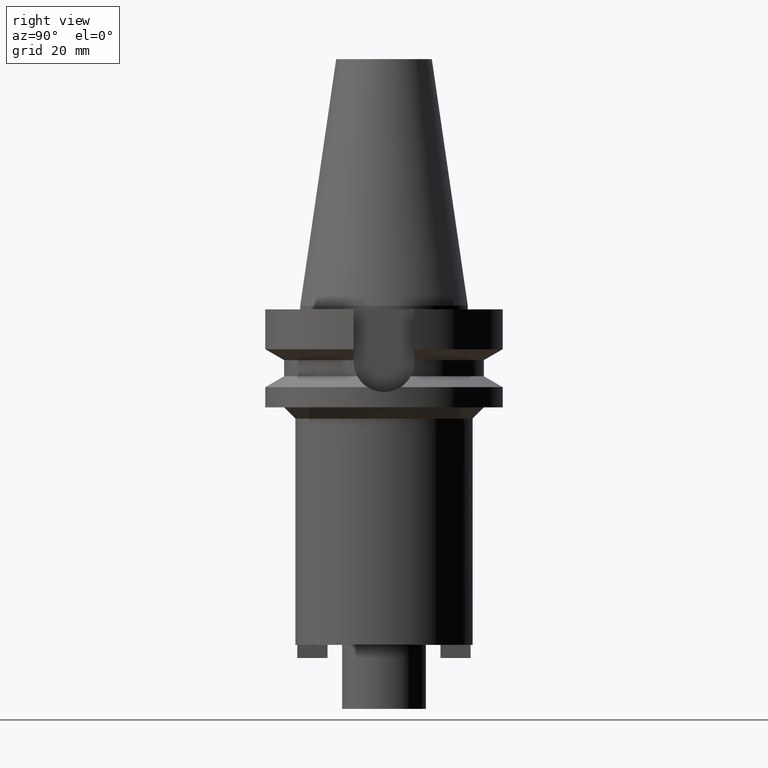
[diagram: clean part render]
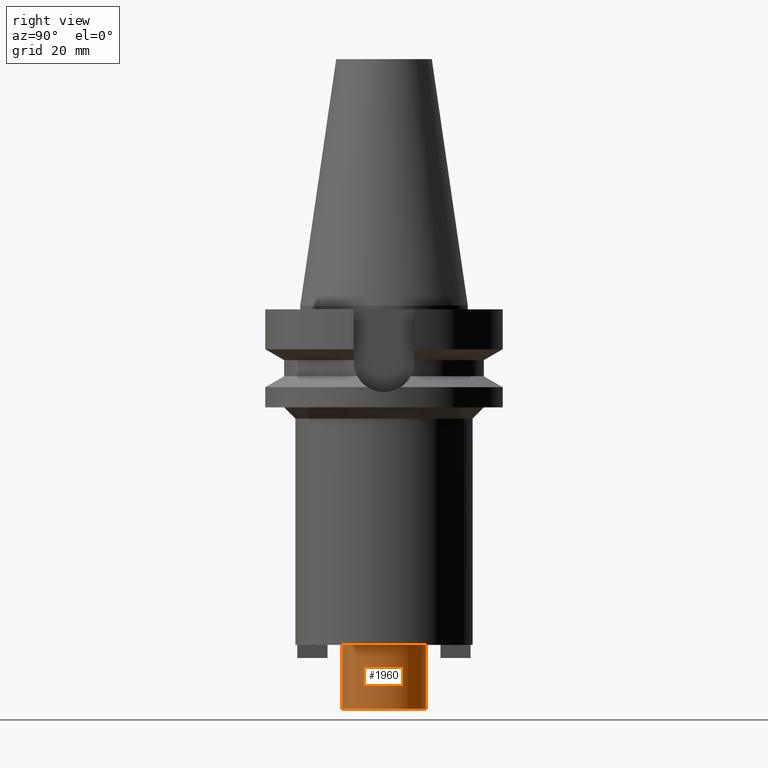
[diagram: same view with one face highlighted and labeled with its STEP entity id]
A machine part, right view. The second image highlights one B-rep face of the part: STEP entity #1960.
In plain terms, the highlighted cylindrical surface (partial cylindrical patch) has radius 11.1125 mm, axis along (0, 0, -1).
Its self-contained STEP definition (entity closure, byte-faithful):
#729=CARTESIAN_POINT('',(0.E0,2.131130359876E-14,-9.E1));
#730=DIRECTION('',(0.E0,0.E0,-1.E0));
#731=DIRECTION('',(0.E0,1.E0,0.E0));
#732=AXIS2_PLACEMENT_3D('',#729,#730,#731);
#765=DIRECTION('',(0.E0,0.E0,-1.E0));
#766=VECTOR('',#765,1.7E1);
#767=CARTESIAN_POINT('',(0.E0,-1.11125E1,-9.E1));
#768=LINE('',#767,#766);
#772=DIRECTION('',(0.E0,0.E0,-1.E0));
#773=VECTOR('',#772,1.7E1);
#774=CARTESIAN_POINT('',(0.E0,1.11125E1,-9.E1));
#775=LINE('',#774,#773);
#779=CARTESIAN_POINT('',(0.E0,2.131130359876E-14,-1.07E2));
#780=DIRECTION('',(0.E0,0.E0,1.E0));
#781=DIRECTION('',(0.E0,-1.E0,0.E0));
#782=AXIS2_PLACEMENT_3D('',#779,#780,#781);
#1261=CARTESIAN_POINT('',(0.E0,-1.11125E1,-1.07E2));
#1262=CARTESIAN_POINT('',(0.E0,1.11125E1,-1.07E2));
#1263=VERTEX_POINT('',#1261);
#1264=VERTEX_POINT('',#1262);
#1265=CARTESIAN_POINT('',(0.E0,1.11125E1,-9.E1));
#1266=VERTEX_POINT('',#1265);
#1267=CARTESIAN_POINT('',(0.E0,-1.11125E1,-9.E1));
#1268=VERTEX_POINT('',#1267);
#1948=CARTESIAN_POINT('',(0.E0,2.131130359876E-14,7.402E1));
#1949=DIRECTION('',(0.E0,0.E0,-1.E0));
#1950=DIRECTION('',(0.E0,-1.E0,0.E0));
#1951=AXIS2_PLACEMENT_3D('',#1948,#1949,#1950);
#1952=CYLINDRICAL_SURFACE('',#1951,1.11125E1);
#1953=ORIENTED_EDGE('',*,*,#1938,.T.);
#1955=ORIENTED_EDGE('',*,*,#1954,.F.);
#1956=ORIENTED_EDGE('',*,*,#1941,.F.);
#1957=ORIENTED_EDGE('',*,*,#1908,.F.);
#1958=EDGE_LOOP('',(#1953,#1955,#1956,#1957));
#1959=FACE_OUTER_BOUND('',#1958,.F.);
#733=CIRCLE('',#732,1.11125E1);
#783=CIRCLE('',#782,1.11125E1);
#1908=EDGE_CURVE('',#1266,#1268,#733,.T.);
#1938=EDGE_CURVE('',#1266,#1264,#775,.T.);
#1941=EDGE_CURVE('',#1268,#1263,#768,.T.);
#1954=EDGE_CURVE('',#1263,#1264,#783,.T.);
#1960=ADVANCED_FACE('',(#1959),#1952,.T.);